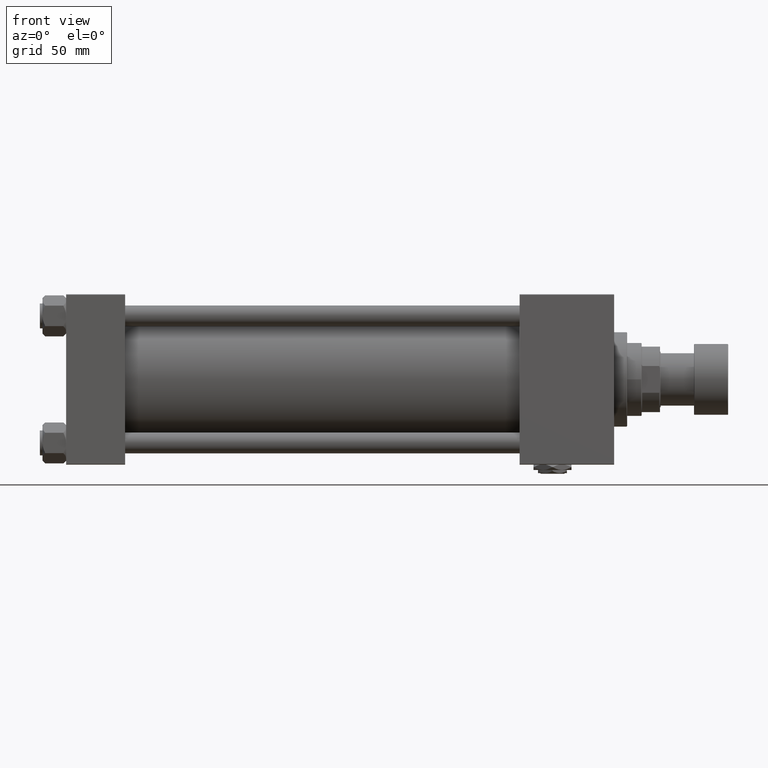
[diagram: clean part render]
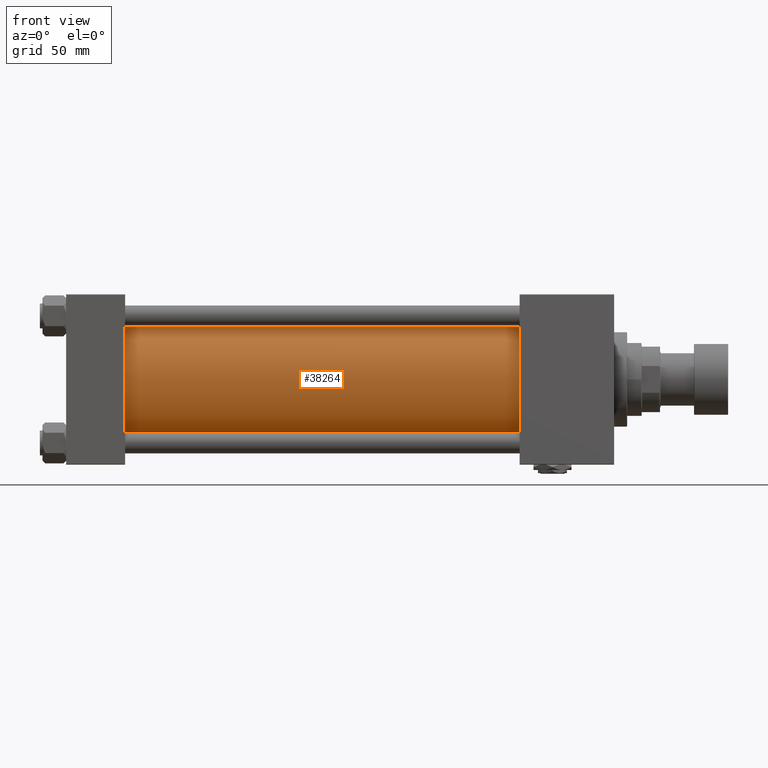
[diagram: same view with one face highlighted and labeled with its STEP entity id]
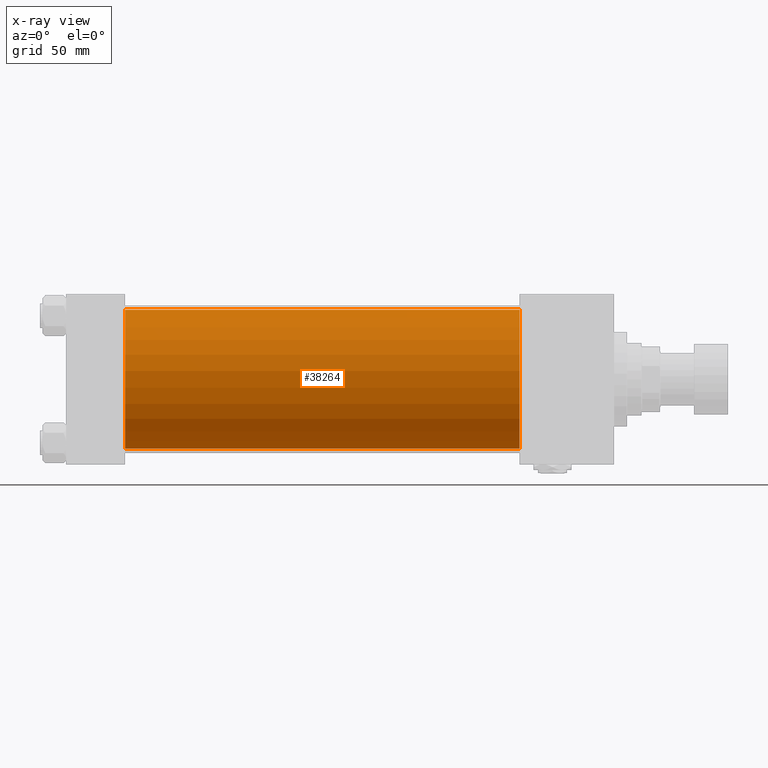
[diagram: x-ray of the same camera — body ghosted, the highlighted face saturated]
A machine part, front view. The second image highlights one B-rep face of the part: STEP entity #38264.
The next image is the same camera in x-ray: the body ghosted, the highlighted face saturated — about 0% of this face is hidden behind the body in this view.
In plain terms, the highlighted cylindrical surface (partial cylindrical patch) has radius 53 mm, axis along (-1, -0, -0).
Its self-contained STEP definition (entity closure, byte-faithful):
#1041 = CARTESIAN_POINT ( 'NONE',  ( 346.0000000000000000, -2.602085213965210642E-15, 53.00000000000000711 ) ) ;
#1692 = CIRCLE ( 'NONE', #43749, 53.00000000000000711 ) ;
#1800 = EDGE_LOOP ( 'NONE', ( #11848, #29425, #48016, #39710 ) ) ;
#2657 = CARTESIAN_POINT ( 'NONE',  ( 346.0000000000000000, -2.602085213965210642E-15, 0.000000000000000000 ) ) ;
#4043 = AXIS2_PLACEMENT_3D ( 'NONE', #7726, #36979, #20345 ) ;
#6401 = VERTEX_POINT ( 'NONE', #31206 ) ;
#7726 = CARTESIAN_POINT ( 'NONE',  ( 44.99999999999998579, -2.602085213965210642E-15, 0.000000000000000000 ) ) ;
#10679 = CARTESIAN_POINT ( 'NONE',  ( 346.0000000000000000, 3.888542821515762466E-15, -53.00000000000000711 ) ) ;
#11848 = ORIENTED_EDGE ( 'NONE', *, *, #23057, .F. ) ;
#13472 = CIRCLE ( 'NONE', #4043, 53.00000000000000711 ) ;
#14445 = LINE ( 'NONE', #10679, #41798 ) ;
#15691 = CARTESIAN_POINT ( 'NONE',  ( 44.99999999999998579, -2.602085213965210642E-15, 53.00000000000000711 ) ) ;
#18518 = DIRECTION ( 'NONE',  ( 0.000000000000000000, 0.000000000000000000, -1.000000000000000000 ) ) ;
#20345 = DIRECTION ( 'NONE',  ( 0.000000000000000000, 0.000000000000000000, 1.000000000000000000 ) ) ;
#22662 = CYLINDRICAL_SURFACE ( 'NONE', #33249, 53.00000000000000711 ) ;
#23057 = EDGE_CURVE ( 'NONE', #6401, #32288, #14445, .T. ) ;
#27485 = DIRECTION ( 'NONE',  ( -1.000000000000000000, -0.000000000000000000, -0.000000000000000000 ) ) ;
#29425 = ORIENTED_EDGE ( 'NONE', *, *, #43248, .F. ) ;
#30991 = CARTESIAN_POINT ( 'NONE',  ( 346.0000000000000000, -2.602085213965210642E-15, 0.000000000000000000 ) ) ;
#31206 = CARTESIAN_POINT ( 'NONE',  ( 346.0000000000000000, 3.888542821515762466E-15, -53.00000000000000711 ) ) ;
#31648 = DIRECTION ( 'NONE',  ( 1.000000000000000000, 0.000000000000000000, 0.000000000000000000 ) ) ;
#32288 = VERTEX_POINT ( 'NONE', #50460 ) ;
#33001 = VERTEX_POINT ( 'NONE', #51663 ) ;
#33038 = VERTEX_POINT ( 'NONE', #15691 ) ;
#33249 = AXIS2_PLACEMENT_3D ( 'NONE', #30991, #27485, #35007 ) ;
#35007 = DIRECTION ( 'NONE',  ( 0.000000000000000000, 0.000000000000000000, 1.000000000000000000 ) ) ;
#35108 = DIRECTION ( 'NONE',  ( -1.000000000000000000, -0.000000000000000000, -0.000000000000000000 ) ) ;
#35420 = EDGE_CURVE ( 'NONE', #33001, #33038, #50152, .T. ) ;
#36854 = EDGE_CURVE ( 'NONE', #33038, #32288, #13472, .T. ) ;
#36979 = DIRECTION ( 'NONE',  ( 1.000000000000000000, -0.000000000000000000, 0.000000000000000000 ) ) ;
#37292 = DIRECTION ( 'NONE',  ( -1.000000000000000000, -0.000000000000000000, -0.000000000000000000 ) ) ;
#38264 = ADVANCED_FACE ( 'NONE', ( #51371 ), #22662, .T. ) ;
#39710 = ORIENTED_EDGE ( 'NONE', *, *, #36854, .T. ) ;
#41798 = VECTOR ( 'NONE', #35108, 1000.000000000000000 ) ;
#43248 = EDGE_CURVE ( 'NONE', #33001, #6401, #1692, .T. ) ;
#43749 = AXIS2_PLACEMENT_3D ( 'NONE', #2657, #31648, #18518 ) ;
#48016 = ORIENTED_EDGE ( 'NONE', *, *, #35420, .T. ) ;
#50152 = LINE ( 'NONE', #1041, #52403 ) ;
#50460 = CARTESIAN_POINT ( 'NONE',  ( 44.99999999999998579, 3.888542821515762466E-15, -53.00000000000000711 ) ) ;
#51371 = FACE_OUTER_BOUND ( 'NONE', #1800, .T. ) ;
#51663 = CARTESIAN_POINT ( 'NONE',  ( 346.0000000000000000, -2.602085213965210642E-15, 53.00000000000000711 ) ) ;
#52403 = VECTOR ( 'NONE', #37292, 1000.000000000000000 ) ;